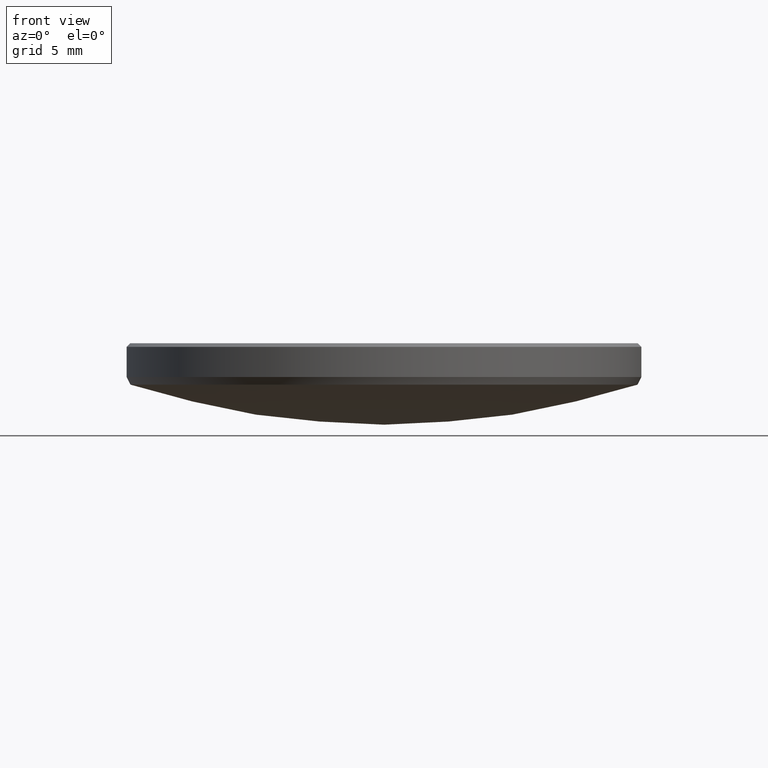
[diagram: clean part render]
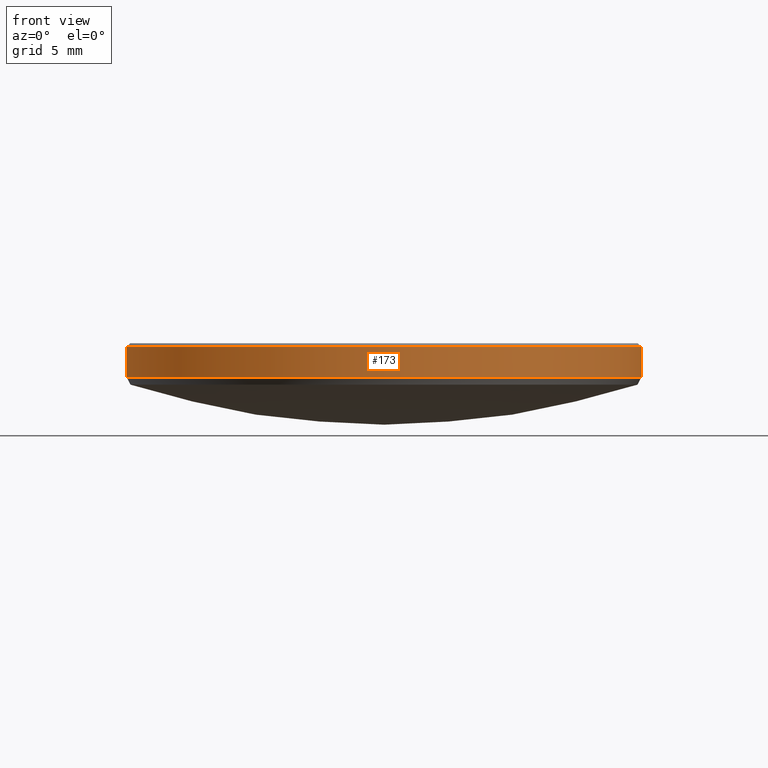
[diagram: same view with one face highlighted and labeled with its STEP entity id]
A machine part, front view. The second image highlights one B-rep face of the part: STEP entity #173.
In plain terms, the highlighted cylindrical surface (partial cylindrical patch) has radius 12.7 mm, axis along (-0, -0, -1).
Its self-contained STEP definition (entity closure, byte-faithful):
#2 = AXIS2_PLACEMENT_3D ( 'NONE', #77, #32, #174 ) ;
#6 = LINE ( 'NONE', #237, #244 ) ;
#7 = EDGE_CURVE ( 'NONE', #19, #51, #205, .T. ) ;
#18 = AXIS2_PLACEMENT_3D ( 'NONE', #132, #101, #285 ) ;
#19 = VERTEX_POINT ( 'NONE', #154 ) ;
#32 = DIRECTION ( 'NONE',  ( 0.000000000000000000, 0.000000000000000000, -1.000000000000000000 ) ) ;
#35 = DIRECTION ( 'NONE',  ( -0.000000000000000000, -0.000000000000000000, -1.000000000000000000 ) ) ;
#37 = LINE ( 'NONE', #292, #286 ) ;
#51 = VERTEX_POINT ( 'NONE', #129 ) ;
#77 = CARTESIAN_POINT ( 'NONE',  ( 0.000000000000000000, 0.000000000000000000, 5.799999999999999822 ) ) ;
#78 = DIRECTION ( 'NONE',  ( -1.000000000000000000, 0.000000000000000000, 0.000000000000000000 ) ) ;
#101 = DIRECTION ( 'NONE',  ( -0.000000000000000000, -0.000000000000000000, -1.000000000000000000 ) ) ;
#106 = CARTESIAN_POINT ( 'NONE',  ( -12.69999999999999929, 0.000000000000000000, 5.799999999999999822 ) ) ;
#128 = FACE_OUTER_BOUND ( 'NONE', #254, .T. ) ;
#129 = CARTESIAN_POINT ( 'NONE',  ( 12.69999999999999929, 1.555301434917138433E-15, 4.313967534857077624 ) ) ;
#132 = CARTESIAN_POINT ( 'NONE',  ( 0.000000000000000000, 0.000000000000000000, 10.00000000000000000 ) ) ;
#146 = VERTEX_POINT ( 'NONE', #106 ) ;
#149 = EDGE_CURVE ( 'NONE', #169, #146, #248, .T. ) ;
#154 = CARTESIAN_POINT ( 'NONE',  ( -12.69999999999999929, 0.000000000000000000, 4.313967534857077624 ) ) ;
#166 = AXIS2_PLACEMENT_3D ( 'NONE', #253, #197, #78 ) ;
#169 = VERTEX_POINT ( 'NONE', #204 ) ;
#173 = ADVANCED_FACE ( 'NONE', ( #128 ), #226, .T. ) ;
#174 = DIRECTION ( 'NONE',  ( 1.000000000000000000, 0.000000000000000000, 0.000000000000000000 ) ) ;
#189 = ORIENTED_EDGE ( 'NONE', *, *, #149, .T. ) ;
#197 = DIRECTION ( 'NONE',  ( -0.000000000000000000, -0.000000000000000000, 1.000000000000000000 ) ) ;
#204 = CARTESIAN_POINT ( 'NONE',  ( 12.69999999999999929, 1.555301434917138433E-15, 5.799999999999999822 ) ) ;
#205 = CIRCLE ( 'NONE', #166, 12.69999999999999929 ) ;
#220 = ORIENTED_EDGE ( 'NONE', *, *, #7, .T. ) ;
#222 = ORIENTED_EDGE ( 'NONE', *, *, #269, .F. ) ;
#226 = CYLINDRICAL_SURFACE ( 'NONE', #18, 12.69999999999999929 ) ;
#237 = CARTESIAN_POINT ( 'NONE',  ( 12.69999999999999929, 1.555301434917138433E-15, 10.00000000000000000 ) ) ;
#238 = DIRECTION ( 'NONE',  ( -0.000000000000000000, -0.000000000000000000, -1.000000000000000000 ) ) ;
#244 = VECTOR ( 'NONE', #35, 1000.000000000000000 ) ;
#248 = CIRCLE ( 'NONE', #2, 12.69999999999999929 ) ;
#253 = CARTESIAN_POINT ( 'NONE',  ( 0.000000000000000000, 0.000000000000000000, 4.313967534857077624 ) ) ;
#254 = EDGE_LOOP ( 'NONE', ( #222, #189, #325, #220 ) ) ;
#268 = EDGE_CURVE ( 'NONE', #146, #19, #37, .T. ) ;
#269 = EDGE_CURVE ( 'NONE', #169, #51, #6, .T. ) ;
#285 = DIRECTION ( 'NONE',  ( -1.000000000000000000, 0.000000000000000000, 0.000000000000000000 ) ) ;
#286 = VECTOR ( 'NONE', #238, 1000.000000000000000 ) ;
#292 = CARTESIAN_POINT ( 'NONE',  ( -12.69999999999999929, 0.000000000000000000, 10.00000000000000000 ) ) ;
#325 = ORIENTED_EDGE ( 'NONE', *, *, #268, .T. ) ;